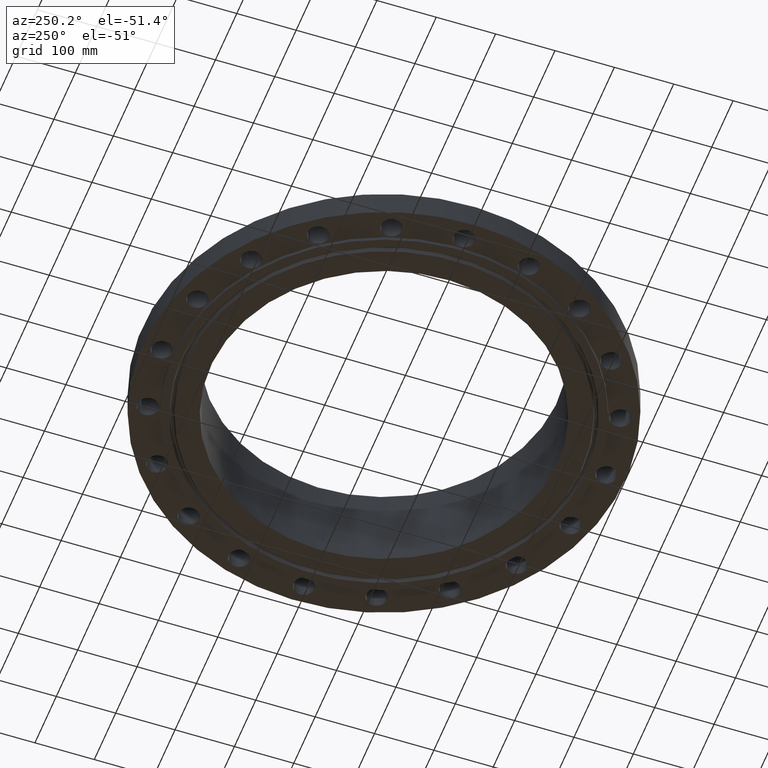
[diagram: clean part render]
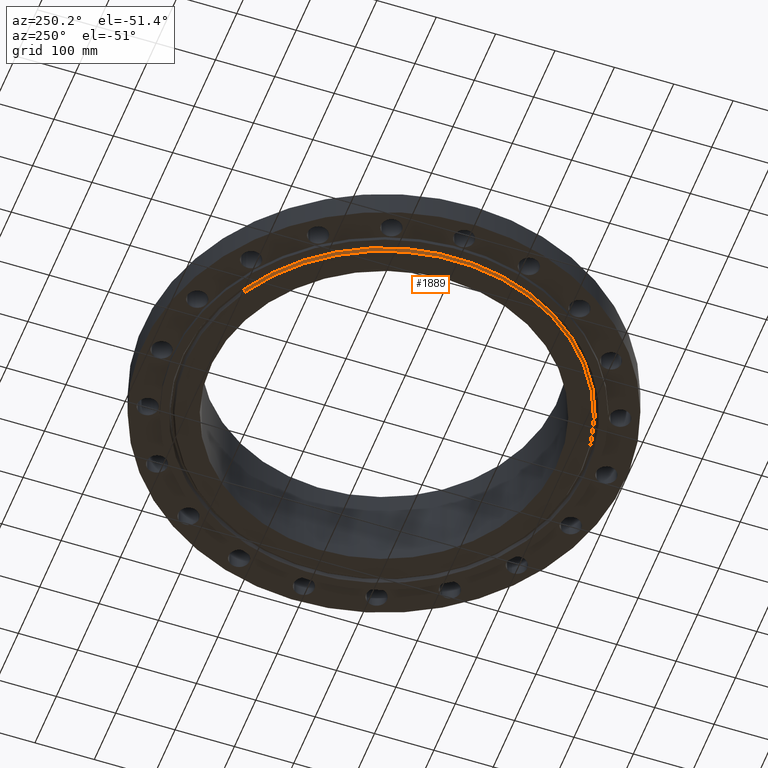
[diagram: same view with one face highlighted and labeled with its STEP entity id]
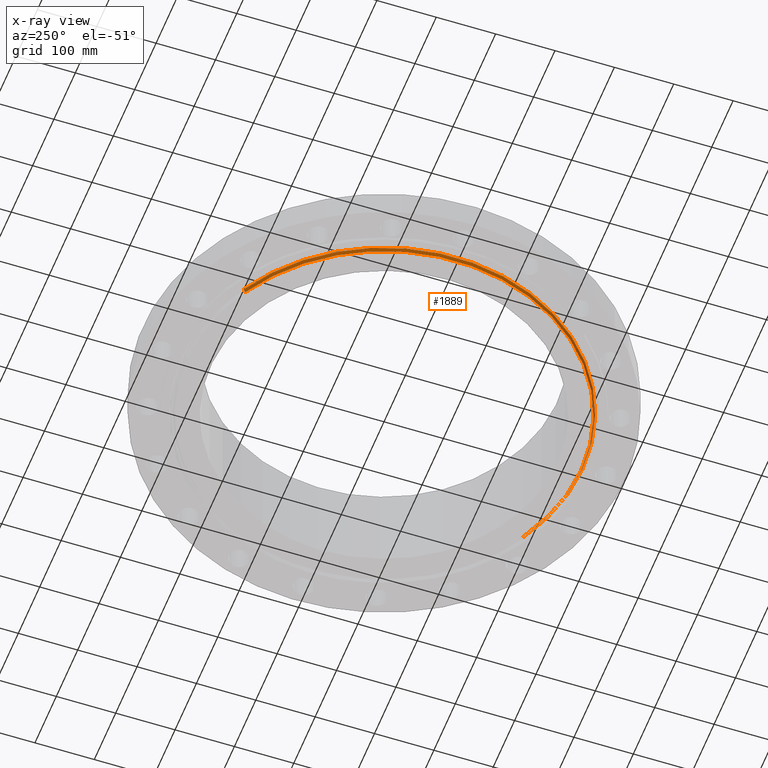
[diagram: x-ray of the same camera — body ghosted, the highlighted face saturated]
A machine part, auxiliary view. The second image highlights one B-rep face of the part: STEP entity #1889.
The next image is the same camera in x-ray: the body ghosted, the highlighted face saturated — about 0% of this face is hidden behind the body in this view.
In plain terms, the highlighted conical surface has half-angle 23 deg.
Its self-contained STEP definition (entity closure, byte-faithful):
#1697=AXIS2_PLACEMENT_3D('Circle Axis2P3D',#1695,#1696,$) ;
#1851=AXIS2_PLACEMENT_3D('Circle Axis2P3D',#1849,#1850,$) ;
#1864=AXIS2_PLACEMENT_3D('Cone Axis2P3D',#1861,#1862,#1863) ;
#1690=CARTESIAN_POINT('Vertex',(-6.26998712208,11.4771344423,-0.250000000001)) ;
#1692=CARTESIAN_POINT('Vertex',(6.26998712208,-11.4771344423,-0.250000000001)) ;
#1695=CARTESIAN_POINT('Axis2P3D Location',(-3.35689481461E-015,0.,-0.250000000001)) ;
#1827=CARTESIAN_POINT('Vertex',(6.31698849226,-11.5631698733,-0.0190396522348)) ;
#1834=CARTESIAN_POINT('Vertex',(-6.31698849226,11.5631698733,-0.0190396522348)) ;
#1849=CARTESIAN_POINT('Axis2P3D Location',(0.,0.,-0.0190396522348)) ;
#1861=CARTESIAN_POINT('Axis2P3D Location',(0.,0.,-0.310000000001)) ;
#1866=CARTESIAN_POINT('Line Origine',(-6.29348780717,11.5201521578,-0.134519826118)) ;
#1871=CARTESIAN_POINT('Line Origine',(6.29348780717,-11.5201521578,-0.134519826118)) ;
#1696=DIRECTION('Axis2P3D Direction',(0.,0.,-0.0393700787402)) ;
#1850=DIRECTION('Axis2P3D Direction',(0.,0.,0.0393700787402)) ;
#1862=DIRECTION('Axis2P3D Direction',(0.,0.,0.0393700787402)) ;
#1863=DIRECTION('Axis2P3D XDirection',(-0.0188750212049,0.0345504945626,0.)) ;
#1867=DIRECTION('Vector Direction',(-0.00737505833565,0.0134999537303,0.0362403485611)) ;
#1872=DIRECTION('Vector Direction',(0.00737505833565,-0.0134999537303,0.0362403485611)) ;
#1868=VECTOR('Line Direction',#1867,0.0393700787402) ;
#1873=VECTOR('Line Direction',#1872,0.0393700787402) ;
#1884=ORIENTED_EDGE('',*,*,#1875,.F.) ;
#1885=ORIENTED_EDGE('',*,*,#1853,.F.) ;
#1886=ORIENTED_EDGE('',*,*,#1870,.T.) ;
#1887=ORIENTED_EDGE('',*,*,#1699,.F.) ;
#1889=ADVANCED_FACE('PartBody',(#1888),#1865,.T.) ;
#1698=CIRCLE('generated circle',#1697,13.0781250001) ;
#1852=CIRCLE('generated circle',#1851,13.1761618512) ;
#1865=CONICAL_SURFACE('Cone',#1864,13.0526565111,0.401425727959) ;
#1699=EDGE_CURVE('',#1693,#1691,#1698,.T.) ;
#1853=EDGE_CURVE('',#1835,#1828,#1852,.T.) ;
#1870=EDGE_CURVE('',#1835,#1691,#1869,.F.) ;
#1875=EDGE_CURVE('',#1828,#1693,#1874,.F.) ;
#1883=EDGE_LOOP('',(#1884,#1885,#1886,#1887)) ;
#1888=FACE_OUTER_BOUND('',#1883,.T.) ;
#1869=LINE('Line',#1866,#1868) ;
#1874=LINE('Line',#1871,#1873) ;
#1691=VERTEX_POINT('',#1690) ;
#1693=VERTEX_POINT('',#1692) ;
#1828=VERTEX_POINT('',#1827) ;
#1835=VERTEX_POINT('',#1834) ;